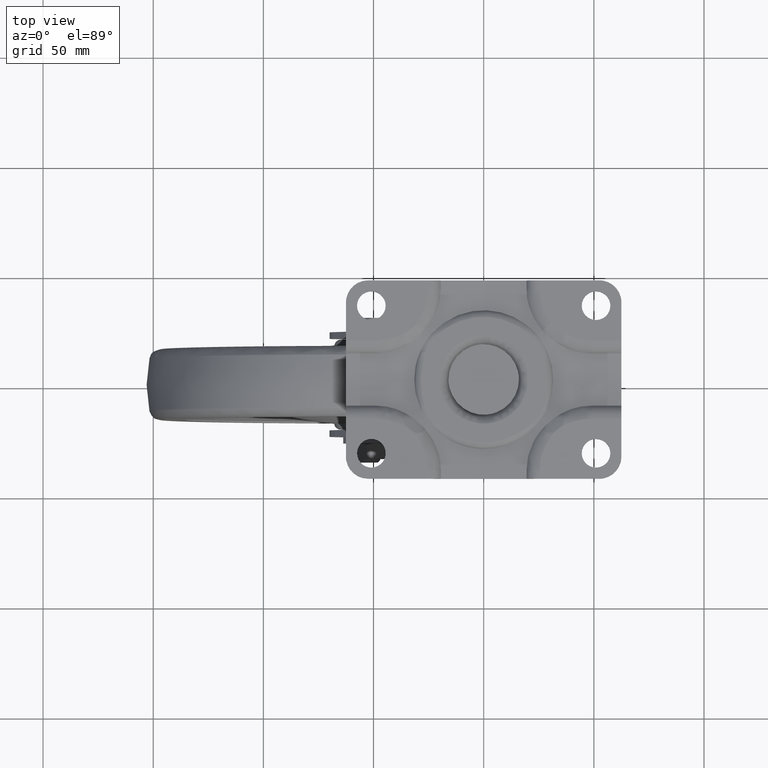
[diagram: clean part render]
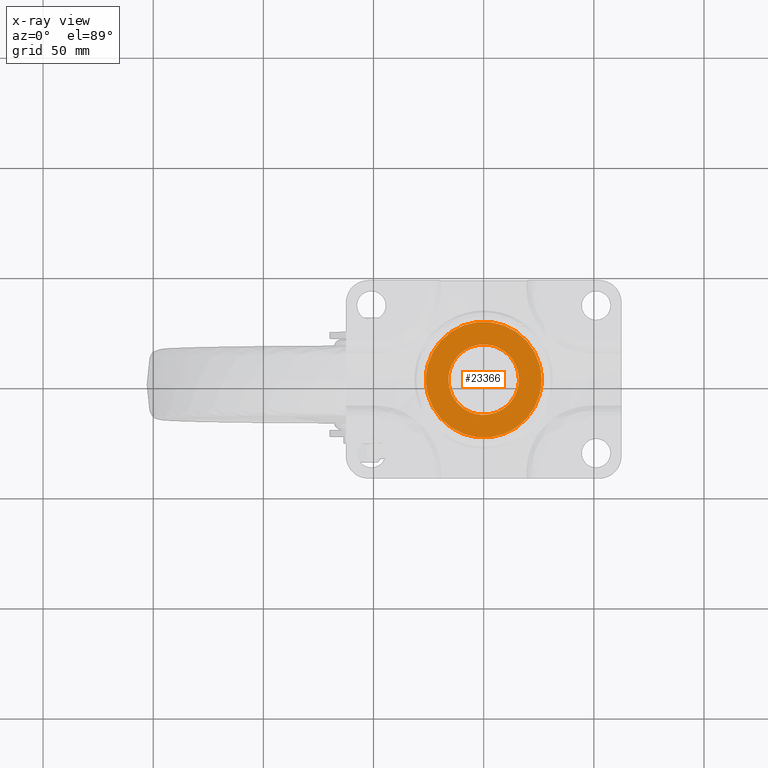
[diagram: x-ray — body ghosted, one internal face saturated and labeled with its STEP entity id]
A machine part, top view, then the same camera in x-ray: the body is ghosted and one INTERNAL B-rep face — a face not visible from any outside direction — is saturated and labeled: STEP entity #23366.
In plain terms, the highlighted face is a freeform B-spline surface patch.
Its self-contained STEP definition (entity closure, byte-faithful):
#19732=CARTESIAN_POINT('',(-25.452644216162749,6.535128291747949,-7.185034000528854));
#19733=VERTEX_POINT('',#19732);
#19747=CARTESIAN_POINT('',(26.278222910961748,-4.898443E-016,-7.185034000000099));
#19748=VERTEX_POINT('',#19747);
#19749=CARTESIAN_POINT('',(-25.452644216162749,6.535128291747949,-7.185034000528854));
#19750=CARTESIAN_POINT('',(-25.034765608102269,8.163570298789322,-7.185034000526724));
#19751=CARTESIAN_POINT('',(-24.087583075985670,10.779119339503360,-7.185034000520509));
#19752=CARTESIAN_POINT('',(-21.833254274678890,14.854212912488300,-7.185034000503022));
#19753=CARTESIAN_POINT('',(-19.223695180799670,18.116327465489690,-7.185034000480899));
#19754=CARTESIAN_POINT('',(-15.724433568732460,21.192023080785049,-7.185034000449647));
#19755=CARTESIAN_POINT('',(-12.365588994826640,23.312050380142100,-7.185034000418491));
#19756=CARTESIAN_POINT('',(-8.539168364024212,24.952245783402311,-7.185034000382061));
#19757=CARTESIAN_POINT('',(-4.510778848483468,26.016173494706759,-7.185034000342938));
#19758=CARTESIAN_POINT('',(-0.554612399950465,26.368620294504009,-7.185034000303558));
#19759=CARTESIAN_POINT('',(3.301925370935032,26.144854942504089,-7.185034000264487));
#19760=CARTESIAN_POINT('',(7.101292638233320,25.423197558657819,-7.185034000225341));
#19761=CARTESIAN_POINT('',(10.643956823141441,24.124061257711130,-7.185034000188093));
#19762=CARTESIAN_POINT('',(14.133976638934209,22.250892983688789,-7.185034000150465));
#19763=CARTESIAN_POINT('',(17.185789604571820,20.034850176428922,-7.185034000117231));
#19764=CARTESIAN_POINT('',(19.903983211286270,17.281585845870492,-7.185034000086266));
#19765=CARTESIAN_POINT('',(22.221944317393589,14.191235533315030,-7.185034000058884));
#19766=CARTESIAN_POINT('',(24.085885010101030,10.798850145690871,-7.185034000035949));
#19767=CARTESIAN_POINT('',(25.799973780612181,5.933327636711298,-7.185034000012247));
#19768=CARTESIAN_POINT('',(26.278962661459001,2.274642056511218,-7.185034000003467));
#19769=CARTESIAN_POINT('',(26.278222910961748,-4.898443E-016,-7.185034000000099));
#19770=B_SPLINE_CURVE_WITH_KNOTS('',3,(#19749,#19750,#19751,#19752,#19753,#19754,#19755,#19756,#19757,#19758,#19759,#19760,#19761,#19762,#19763,#19764,#19765,#19766,#19767,#19768,#19769),.UNSPECIFIED.,.F.,.U.,(4,1,1,1,1,1,1,1,1,1,1,1,1,1,1,1,1,1,4),(0.000000160404767,5.043577008748542,8.307164633820150,13.944214192243360,17.504457736621308,22.251475033011911,25.811735436797850,29.965259778956419,34.712094172099221,37.678885910052323,41.535879310921040,46.282817887722018,48.953014537411413,53.403355673414993,57.556976501807213,60.523857173185689,64.974092047403900,69.127734403280911,75.951437646574860),.UNSPECIFIED.);
#19771=EDGE_CURVE('',#19733,#19748,#19770,.T.);
#19773=CARTESIAN_POINT('',(25.452644216162749,-6.535128291747951,-7.185034000528853));
#19774=VERTEX_POINT('',#19773);
#19775=CARTESIAN_POINT('',(26.278222910961748,-4.898443E-016,-7.185034000000099));
#19776=CARTESIAN_POINT('',(26.278222911201077,-3.319711567598644,-7.185034000264476));
#19777=CARTESIAN_POINT('',(25.452644216162749,-6.535128291747952,-7.185034000528853));
#19785=(BOUNDED_CURVE()B_SPLINE_CURVE(2,(#19775,#19776,#19777),.UNSPECIFIED.,.F.,.U.)B_SPLINE_CURVE_WITH_KNOTS((3,3),(0.500000000000000,0.542443238249583),.UNSPECIFIED.)CURVE()GEOMETRIC_REPRESENTATION_ITEM()RATIONAL_B_SPLINE_CURVE((1.0,0.950274653328853,0.917433344544159))REPRESENTATION_ITEM(''));
#19786=EDGE_CURVE('',#19748,#19774,#19785,.T.);
#19839=CARTESIAN_POINT('',(-26.278222910961730,0.0,-7.185034000000115));
#19840=VERTEX_POINT('',#19839);
#19841=CARTESIAN_POINT('',(25.452644216162749,-6.535128291747951,-7.185034000528853));
#19842=CARTESIAN_POINT('',(24.912167995219200,-8.642663055910630,-7.185034000526104));
#19843=CARTESIAN_POINT('',(23.595375287676791,-11.979896537424530,-7.185034000517092));
#19844=CARTESIAN_POINT('',(20.828021633808099,-16.215417171800091,-7.185034000494627));
#19845=CARTESIAN_POINT('',(18.076782045408180,-19.213686221985579,-7.185034000470774));
#19846=CARTESIAN_POINT('',(15.215581208614410,-21.508093862086611,-7.185034000444884));
#19847=CARTESIAN_POINT('',(11.672821347049460,-23.689055965224231,-7.185034000412011));
#19848=CARTESIAN_POINT('',(7.425324541821133,-25.397426776857309,-7.185034000371587));
#19849=CARTESIAN_POINT('',(2.930634255078971,-26.211019485531128,-7.185034000327234));
#19850=CARTESIAN_POINT('',(-1.227317505496719,-26.345814306411370,-7.185034000285634));
#19851=CARTESIAN_POINT('',(-5.666563937689908,-25.836161634169930,-7.185034000240276));
#19852=CARTESIAN_POINT('',(-10.399747377720979,-24.309737160299530,-7.185034000190854));
#19853=CARTESIAN_POINT('',(-15.093240914941971,-21.721975269988238,-7.185034000140118));
#19854=CARTESIAN_POINT('',(-18.894765701910291,-18.510744298204219,-7.185034000098256));
#19855=CARTESIAN_POINT('',(-21.612326536071979,-15.092231049666021,-7.185034000066127));
#19856=CARTESIAN_POINT('',(-23.534974979544302,-11.857613848987210,-7.185034000042818));
#19857=CARTESIAN_POINT('',(-24.946884007857651,-8.577229094977806,-7.185034000024348));
#19858=CARTESIAN_POINT('',(-26.018416676939800,-4.450158057338498,-7.185034000008530));
#19859=CARTESIAN_POINT('',(-26.278358215330350,-1.582296419312950,-7.185034000001929));
#19860=CARTESIAN_POINT('',(-26.278222910961730,0.0,-7.185034000000115));
#19861=B_SPLINE_CURVE_WITH_KNOTS('',3,(#19841,#19842,#19843,#19844,#19845,#19846,#19847,#19848,#19849,#19850,#19851,#19852,#19853,#19854,#19855,#19856,#19857,#19858,#19859,#19860),.UNSPECIFIED.,.F.,.U.,(4,1,1,1,1,1,1,1,1,1,1,1,1,1,1,1,1,4),(0.000000160401754,6.527024424546184,10.680649497265989,15.130965279379540,18.691225604730629,21.658107319321640,27.591806513583329,32.338755563426879,35.305521888219410,40.052370294999761,45.689461886627981,50.139793880884241,56.073527668744319,60.523857173186158,63.194052841133910,67.347680163810296,71.204536827106111,75.951437646574774),.UNSPECIFIED.);
#19862=EDGE_CURVE('',#19774,#19840,#19861,.T.);
#19864=CARTESIAN_POINT('',(-26.278222910961730,0.0,-7.185034000000115));
#19865=CARTESIAN_POINT('',(-26.278222911201070,3.319711567598643,-7.185034000264485));
#19866=CARTESIAN_POINT('',(-25.452644216162749,6.535128291747949,-7.185034000528854));
#19874=(BOUNDED_CURVE()B_SPLINE_CURVE(2,(#19864,#19865,#19866),.UNSPECIFIED.,.F.,.U.)B_SPLINE_CURVE_WITH_KNOTS((3,3),(0.0,0.042443238249583),.UNSPECIFIED.)CURVE()GEOMETRIC_REPRESENTATION_ITEM()RATIONAL_B_SPLINE_CURVE((1.0,0.950274653328853,0.917433344544159))REPRESENTATION_ITEM(''));
#19875=EDGE_CURVE('',#19840,#19733,#19874,.T.);
#23289=CARTESIAN_POINT('',(-28.903417277902211,-28.890999236272879,-7.185034000000099));
#23290=CARTESIAN_POINT('',(28.903418687575961,-28.890999236272879,-7.185034000000099));
#23291=CARTESIAN_POINT('',(-28.903417277902211,28.891000645696419,-7.185034000000099));
#23292=CARTESIAN_POINT('',(28.903418687575961,28.891000645696419,-7.185034000000099));
#23293=B_SPLINE_SURFACE_WITH_KNOTS('',1,1,((#23289,#23291),(#23290,#23292)),.UNSPECIFIED.,.F.,.F.,.U.,(2,2),(2,2),(0.0,57.806835965478172),(0.0,57.781999881969313),.UNSPECIFIED.);
#23294=ORIENTED_EDGE('',*,*,#19862,.F.);
#23295=ORIENTED_EDGE('',*,*,#19786,.F.);
#23296=ORIENTED_EDGE('',*,*,#19771,.F.);
#23297=ORIENTED_EDGE('',*,*,#19875,.F.);
#23298=EDGE_LOOP('',(#23294,#23295,#23296,#23297));
#23299=FACE_OUTER_BOUND('',#23298,.T.);
#23300=CARTESIAN_POINT('',(16.0,0.0,-7.185034000000150));
#23301=VERTEX_POINT('',#23300);
#23302=CARTESIAN_POINT('',(0.976776632904584,15.970156774728650,-7.185034000000151));
#23303=VERTEX_POINT('',#23302);
#23304=CARTESIAN_POINT('',(16.0,0.0,-7.185034000000150));
#23305=CARTESIAN_POINT('',(15.999999999999995,15.051297070163594,-7.185034000000151));
#23306=CARTESIAN_POINT('',(0.976776632904584,15.970156774728656,-7.185034000000150));
#23314=(BOUNDED_CURVE()B_SPLINE_CURVE(2,(#23304,#23305,#23306),.UNSPECIFIED.,.F.,.U.)B_SPLINE_CURVE_WITH_KNOTS((3,3),(0.0,0.239332962238221),.UNSPECIFIED.)CURVE()GEOMETRIC_REPRESENTATION_ITEM()RATIONAL_B_SPLINE_CURVE((1.0,0.719603993287556,0.976072041665170))REPRESENTATION_ITEM(''));
#23315=EDGE_CURVE('',#23301,#23303,#23314,.T.);
#23316=ORIENTED_EDGE('',*,*,#23315,.F.);
#23317=CARTESIAN_POINT('',(-0.976776632904584,-15.970156774728650,-7.185034000000151));
#23318=VERTEX_POINT('',#23317);
#23319=CARTESIAN_POINT('',(-0.976776632904587,-15.970156774728657,-7.185034000000151));
#23320=CARTESIAN_POINT('',(-0.488844212951347,-16.000000000000004,-7.185034000000151));
#23321=CARTESIAN_POINT('',(0.0,-16.0,-7.185034000000150));
#23322=CARTESIAN_POINT('',(15.999999999999998,-15.999999999999998,-7.185034000000151));
#23323=CARTESIAN_POINT('',(16.0,0.0,-7.185034000000150));
#23331=(BOUNDED_CURVE()B_SPLINE_CURVE(2,(#23319,#23320,#23321,#23322,#23323),.UNSPECIFIED.,.F.,.U.)B_SPLINE_CURVE_WITH_KNOTS((3,2,3),(0.739332962238221,0.750000000000000,1.0),.UNSPECIFIED.)CURVE()GEOMETRIC_REPRESENTATION_ITEM()RATIONAL_B_SPLINE_CURVE((0.976072041665170,0.987502787898991,1.0,0.707106781186548,1.0))REPRESENTATION_ITEM(''));
#23332=EDGE_CURVE('',#23318,#23301,#23331,.T.);
#23333=ORIENTED_EDGE('',*,*,#23332,.F.);
#23334=CARTESIAN_POINT('',(-16.0,0.0,-7.185034000000150));
#23335=VERTEX_POINT('',#23334);
#23336=CARTESIAN_POINT('',(-16.0,0.0,-7.185034000000150));
#23337=CARTESIAN_POINT('',(-16.000000000000007,-15.051297070163592,-7.185034000000150));
#23338=CARTESIAN_POINT('',(-0.976776632904587,-15.970156774728657,-7.185034000000151));
#23346=(BOUNDED_CURVE()B_SPLINE_CURVE(2,(#23336,#23337,#23338),.UNSPECIFIED.,.F.,.U.)B_SPLINE_CURVE_WITH_KNOTS((3,3),(0.500000000000000,0.739332962238221),.UNSPECIFIED.)CURVE()GEOMETRIC_REPRESENTATION_ITEM()RATIONAL_B_SPLINE_CURVE((1.0,0.719603993287557,0.976072041665170))REPRESENTATION_ITEM(''));
#23347=EDGE_CURVE('',#23335,#23318,#23346,.T.);
#23348=ORIENTED_EDGE('',*,*,#23347,.F.);
#23349=CARTESIAN_POINT('',(0.976776632904584,15.970156774728656,-7.185034000000150));
#23350=CARTESIAN_POINT('',(0.488844212951345,16.000000000000004,-7.185034000000150));
#23351=CARTESIAN_POINT('',(0.0,16.0,-7.185034000000150));
#23352=CARTESIAN_POINT('',(-15.999999999999998,15.999999999999998,-7.185034000000151));
#23353=CARTESIAN_POINT('',(-16.0,0.0,-7.185034000000150));
#23361=(BOUNDED_CURVE()B_SPLINE_CURVE(2,(#23349,#23350,#23351,#23352,#23353),.UNSPECIFIED.,.F.,.U.)B_SPLINE_CURVE_WITH_KNOTS((3,2,3),(0.239332962238221,0.250000000000000,0.500000000000000),.UNSPECIFIED.)CURVE()GEOMETRIC_REPRESENTATION_ITEM()RATIONAL_B_SPLINE_CURVE((0.976072041665170,0.987502787898991,1.0,0.707106781186548,1.0))REPRESENTATION_ITEM(''));
#23362=EDGE_CURVE('',#23303,#23335,#23361,.T.);
#23363=ORIENTED_EDGE('',*,*,#23362,.F.);
#23364=EDGE_LOOP('',(#23316,#23333,#23348,#23363));
#23365=FACE_BOUND('',#23364,.T.);
#23366=ADVANCED_FACE('',(#23299,#23365),#23293,.T.);